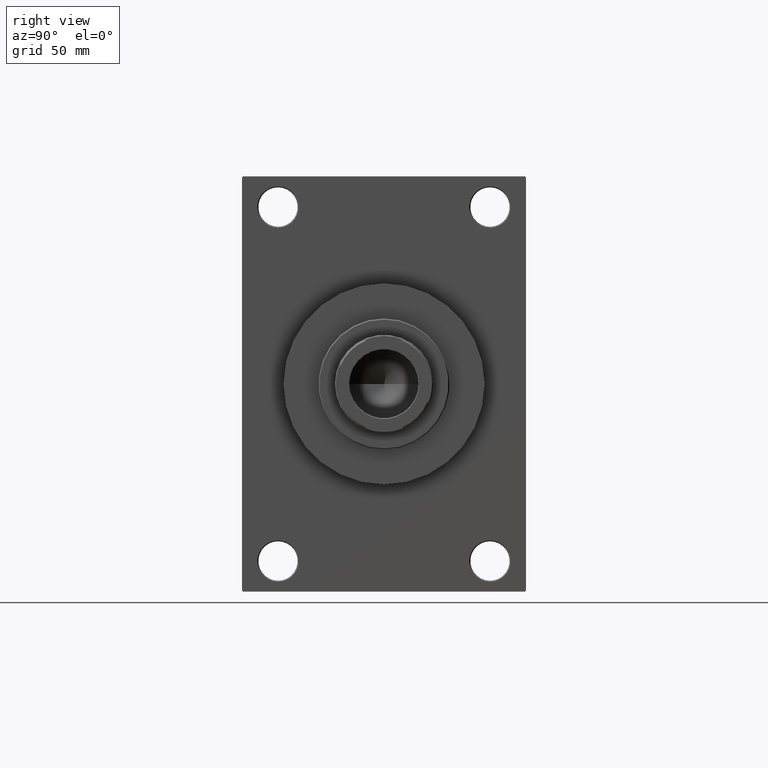
[diagram: clean part render]
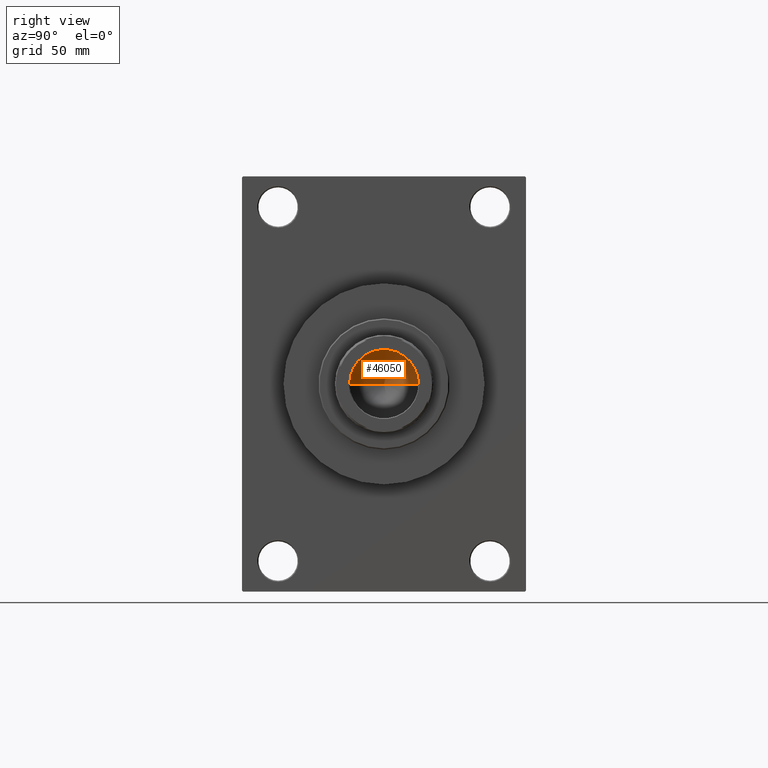
[diagram: same view with one face highlighted and labeled with its STEP entity id]
A machine part, right view. The second image highlights one B-rep face of the part: STEP entity #46050.
In plain terms, the highlighted conical surface has half-angle 59 deg.
Its self-contained STEP definition (entity closure, byte-faithful):
#2991 = CIRCLE ( 'NONE', #16838, 15.74999999999998934 ) ;
#3097 = ORIENTED_EDGE ( 'NONE', *, *, #13345, .F. ) ;
#4410 = CARTESIAN_POINT ( 'NONE',  ( 15.74999999999998934, 0.000000000000000000, 123.0000000000000284 ) ) ;
#5083 = ORIENTED_EDGE ( 'NONE', *, *, #16016, .T. ) ;
#5277 = CARTESIAN_POINT ( 'NONE',  ( -1.497379240617067851E-14, 0.000000000000000000, 113.5364452503159356 ) ) ;
#5300 = CARTESIAN_POINT ( 'NONE',  ( 0.000000000000000000, 0.000000000000000000, 123.0000000000000284 ) ) ;
#7785 = LINE ( 'NONE', #4410, #26912 ) ;
#8317 = CARTESIAN_POINT ( 'NONE',  ( 0.000000000000000000, 0.000000000000000000, 123.0000000000000284 ) ) ;
#8757 = VERTEX_POINT ( 'NONE', #5277 ) ;
#9501 = VERTEX_POINT ( 'NONE', #19452 ) ;
#10133 = LINE ( 'NONE', #35940, #30752 ) ;
#12418 = DIRECTION ( 'NONE',  ( 1.000000000000000000, 0.000000000000000000, 0.000000000000000000 ) ) ;
#13345 = EDGE_CURVE ( 'NONE', #8757, #29856, #7785, .T. ) ;
#16016 = EDGE_CURVE ( 'NONE', #8757, #9501, #10133, .T. ) ;
#16838 = AXIS2_PLACEMENT_3D ( 'NONE', #8317, #35086, #12418 ) ;
#19301 = DIRECTION ( 'NONE',  ( 1.000000000000000000, 0.000000000000000000, 0.000000000000000000 ) ) ;
#19452 = CARTESIAN_POINT ( 'NONE',  ( -15.74999999999998934, 1.928818708657080161E-15, 123.0000000000000284 ) ) ;
#20252 = DIRECTION ( 'NONE',  ( -0.000000000000000000, -0.000000000000000000, 1.000000000000000000 ) ) ;
#21228 = DIRECTION ( 'NONE',  ( -0.8571673007021115565, 1.049727191138617710E-16, 0.5150380749100554878 ) ) ;
#21813 = EDGE_LOOP ( 'NONE', ( #3097, #5083, #29213 ) ) ;
#22261 = CONICAL_SURFACE ( 'NONE', #31490, 15.74999999999998934, 1.029744258676652979 ) ;
#23381 = FACE_OUTER_BOUND ( 'NONE', #21813, .T. ) ;
#26912 = VECTOR ( 'NONE', #30435, 1000.000000000000000 ) ;
#29213 = ORIENTED_EDGE ( 'NONE', *, *, #44755, .T. ) ;
#29856 = VERTEX_POINT ( 'NONE', #46318 ) ;
#30435 = DIRECTION ( 'NONE',  ( 0.8571673007021115565, 0.000000000000000000, 0.5150380749100554878 ) ) ;
#30752 = VECTOR ( 'NONE', #21228, 1000.000000000000000 ) ;
#31490 = AXIS2_PLACEMENT_3D ( 'NONE', #5300, #20252, #19301 ) ;
#35086 = DIRECTION ( 'NONE',  ( -0.000000000000000000, -0.000000000000000000, 1.000000000000000000 ) ) ;
#35940 = CARTESIAN_POINT ( 'NONE',  ( -15.74999999999998934, 1.928818708657080161E-15, 123.0000000000000284 ) ) ;
#44755 = EDGE_CURVE ( 'NONE', #9501, #29856, #2991, .T. ) ;
#46050 = ADVANCED_FACE ( 'NONE', ( #23381 ), #22261, .F. ) ;
#46318 = CARTESIAN_POINT ( 'NONE',  ( 15.74999999999998934, 0.000000000000000000, 123.0000000000000284 ) ) ;